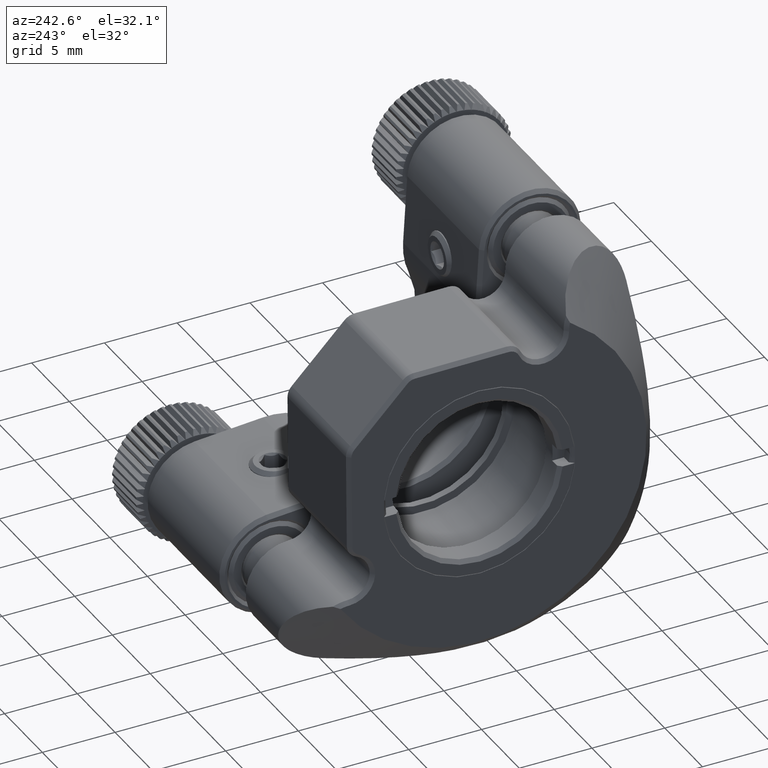
[diagram: clean part render]
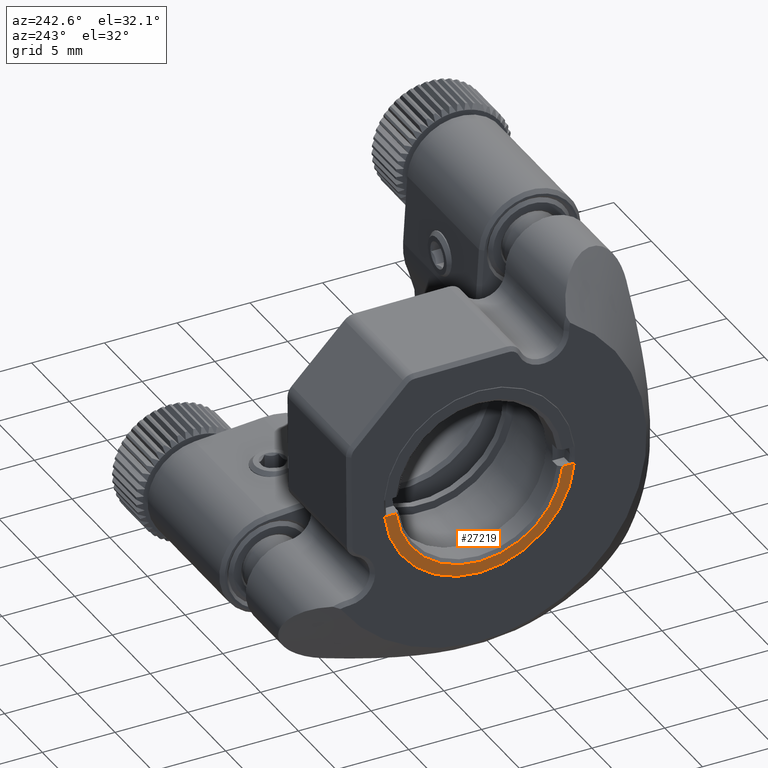
[diagram: same view with one face highlighted and labeled with its STEP entity id]
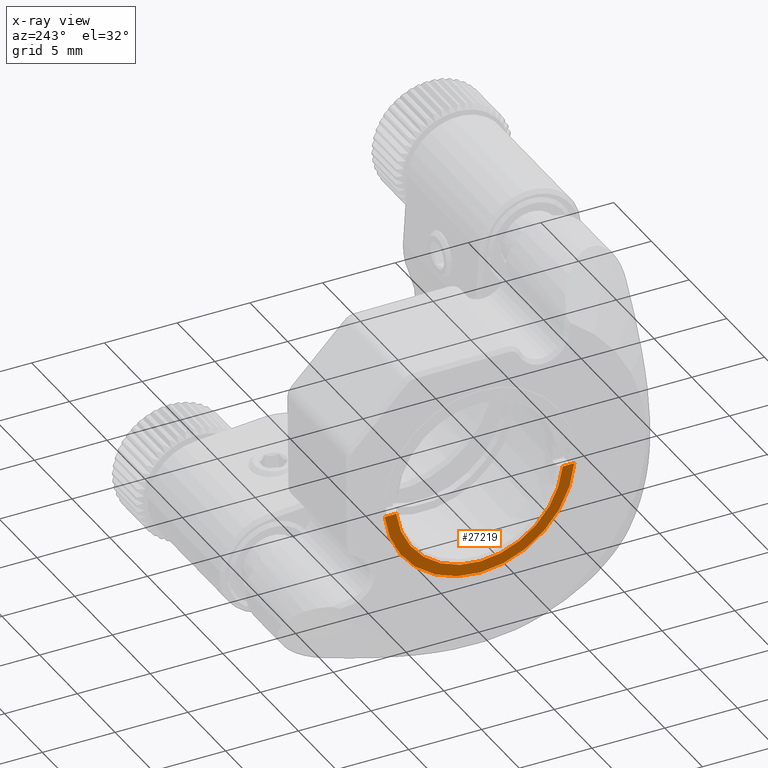
[diagram: x-ray of the same camera — body ghosted, the highlighted face saturated]
A machine part, auxiliary view. The second image highlights one B-rep face of the part: STEP entity #27219.
The next image is the same camera in x-ray: the body ghosted, the highlighted face saturated — about 0% of this face is hidden behind the body in this view.
In plain terms, the highlighted planar face has unit normal (-1, 0, 0).
Its self-contained STEP definition (entity closure, byte-faithful):
#34 = VECTOR ( 'NONE', #33184, 1000.000000000000000 ) ;
#1195 = CIRCLE ( 'NONE', #33477, 5.750000000034558134 ) ;
#2617 = AXIS2_PLACEMENT_3D ( 'NONE', #24988, #3343, #32602 ) ;
#3343 = DIRECTION ( 'NONE',  ( 1.000000000000000000, -1.118828198722649411E-55, -4.937140455162043497E-55 ) ) ;
#3392 = CARTESIAN_POINT ( 'NONE',  ( -19.15289954210474477, 2.114375867419990396, 24.73081422690300002 ) ) ;
#5878 = VERTEX_POINT ( 'NONE', #25736 ) ;
#6304 = CARTESIAN_POINT ( 'NONE',  ( -19.15289954213316648, 7.832747591911925156, 24.67861441271033129 ) ) ;
#8716 = DIRECTION ( 'NONE',  ( 1.073715072582480163E-55, 0.9999583383936530012, -0.009128059870783447952 ) ) ;
#9067 = LINE ( 'NONE', #3392, #34 ) ;
#9671 = PLANE ( 'NONE',  #13337 ) ;
#11385 = LINE ( 'NONE', #25211, #18386 ) ;
#12245 = CARTESIAN_POINT ( 'NONE',  ( -19.15289954216158819, 2.119852703342460565, 25.33078922993917814 ) ) ;
#12424 = VERTEX_POINT ( 'NONE', #6304 ) ;
#13337 = AXIS2_PLACEMENT_3D ( 'NONE', #18188, #14659, #25980 ) ;
#13909 = ORIENTED_EDGE ( 'NONE', *, *, #29850, .T. ) ;
#14659 = DIRECTION ( 'NONE',  ( -1.000000000000000000, 1.118828198427079291E-55, 4.937140455100711194E-55 ) ) ;
#15158 = EDGE_CURVE ( 'NONE', #16921, #12424, #1195, .T. ) ;
#15179 = FACE_OUTER_BOUND ( 'NONE', #16680, .T. ) ;
#16680 = EDGE_LOOP ( 'NONE', ( #13909, #21298, #29780, #27557 ) ) ;
#16921 = VERTEX_POINT ( 'NONE', #35086 ) ;
#18188 = CARTESIAN_POINT ( 'NONE',  ( -19.15289954210474477, 2.119852703342460565, 25.33078922993917814 ) ) ;
#18386 = VECTOR ( 'NONE', #8716, 1000.000000000000000 ) ;
#19650 = CIRCLE ( 'NONE', #2617, 6.545000000073742719 ) ;
#21298 = ORIENTED_EDGE ( 'NONE', *, *, #15158, .T. ) ;
#23061 = DIRECTION ( 'NONE',  ( 1.000000000000000000, -1.118828198722649411E-55, -4.937140455162043497E-55 ) ) ;
#24381 = CARTESIAN_POINT ( 'NONE',  ( -19.15289954211953471, -4.402792670550303988, 24.79030581002048095 ) ) ;
#24988 = CARTESIAN_POINT ( 'NONE',  ( -19.15289954210474477, 2.119852703342460565, 25.33078922993917814 ) ) ;
#25211 = CARTESIAN_POINT ( 'NONE',  ( -19.15289954210474477, 2.114375867419990396, 24.73081422690300002 ) ) ;
#25736 = CARTESIAN_POINT ( 'NONE',  ( -19.15289954211878509, 8.631544405391037955, 24.67132264378548356 ) ) ;
#25980 = DIRECTION ( 'NONE',  ( 1.073715072582480163E-55, 0.9999583383936530012, -0.009128059870783447952 ) ) ;
#27219 = ADVANCED_FACE ( 'NONE', ( #15179 ), #9671, .T. ) ;
#27557 = ORIENTED_EDGE ( 'NONE', *, *, #28728, .F. ) ;
#28728 = EDGE_CURVE ( 'NONE', #31266, #5878, #19650, .T. ) ;
#29780 = ORIENTED_EDGE ( 'NONE', *, *, #34335, .T. ) ;
#29850 = EDGE_CURVE ( 'NONE', #31266, #16921, #11385, .T. ) ;
#31266 = VERTEX_POINT ( 'NONE', #24381 ) ;
#32602 = DIRECTION ( 'NONE',  ( 0.000000000000000000, -0.9999583383936530012, 0.009128059870783286622 ) ) ;
#33184 = DIRECTION ( 'NONE',  ( 1.073715072582480163E-55, 0.9999583383936530012, -0.009128059870783447952 ) ) ;
#33477 = AXIS2_PLACEMENT_3D ( 'NONE', #12245, #23061, #33865 ) ;
#33865 = DIRECTION ( 'NONE',  ( 0.000000000000000000, 0.9999583383936528902, -0.009128059870783654384 ) ) ;
#34335 = EDGE_CURVE ( 'NONE', #12424, #5878, #9067, .T. ) ;
#35086 = CARTESIAN_POINT ( 'NONE',  ( -19.15289954214676982, -3.603995857085623200, 24.78301404109577888 ) ) ;